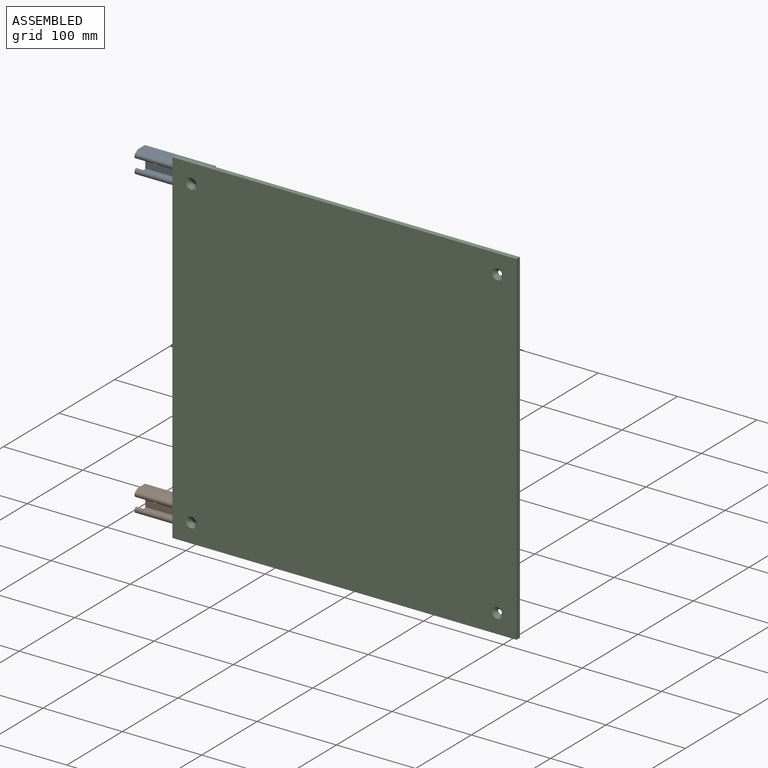
[diagram: assembled view]
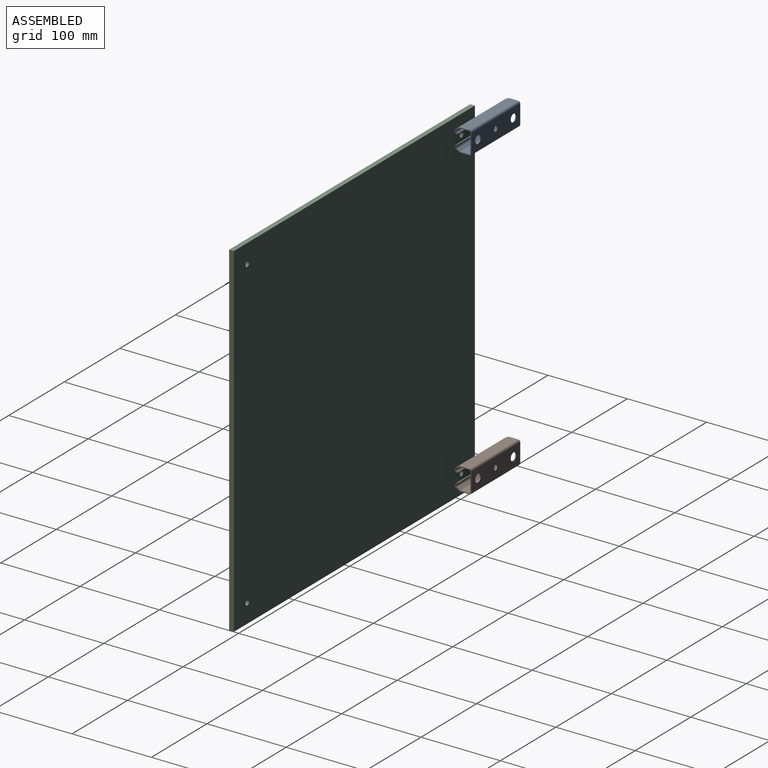
[diagram: assembled view, second angle]
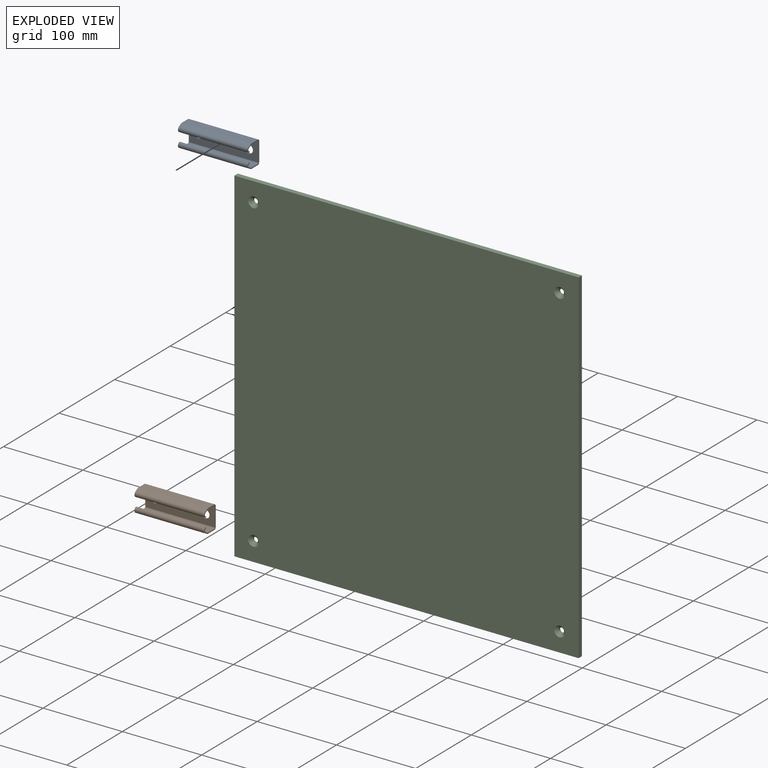
[diagram: exploded view]
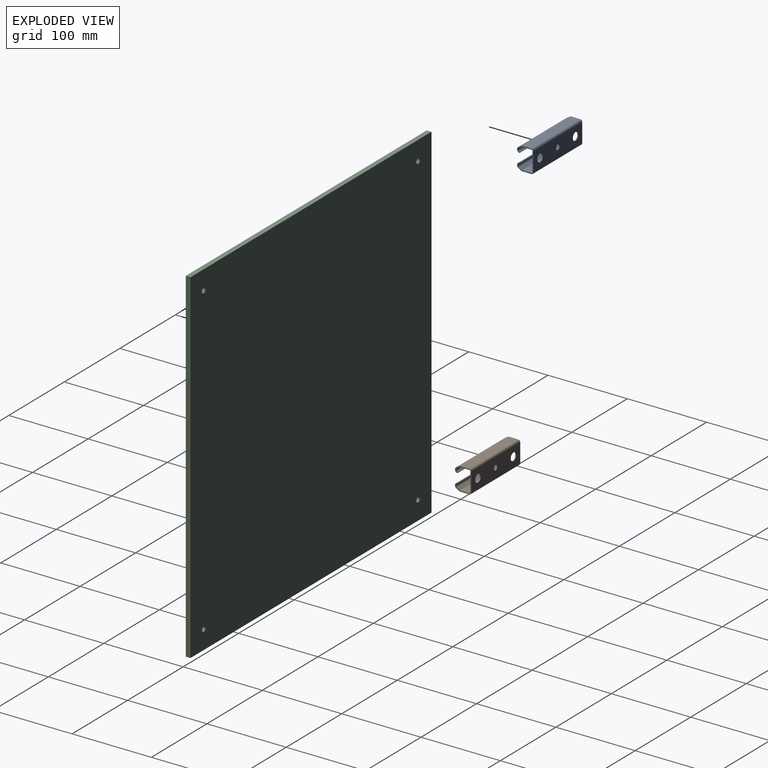
[diagram: exploded view, second angle]
ASSEMBLY  parts=3 mates=2
PART A: 29 faces, bbox 88x20.7x29 mm
  f0: cylinder r=2.5mm len=88mm, axis (1,0,0), area 115.1mm2, adj f1,f23,f24,f25
  f1: plane 88x11.5mm, normal (0,0,-1), area 1012mm2, adj f0,f2,f24,f25
  f2: cylinder r=2.5mm len=88mm, axis (1,0,0), area 345.6mm2, adj f1,f3,f24,f25
  f3: plane 88x24mm, normal (0,-1,0), area 1922.8mm2, adj f2,f4,f24,f25,f26,f27,f28
  f4: cylinder r=2.5mm len=88mm, axis (1,0,0), area 345.6mm2, adj f3,f5,f24,f25
  f5: plane 88x11.5mm, normal (0,0,1), area 1012mm2, adj f4,f6,f24,f25
  f6: cylinder r=2.5mm len=88mm, axis (1,0,0), area 115.1mm2, adj f5,f7,f24,f25
  f7: plane 88x3.7mm, normal (0,0.5,0.87), area 375.8mm2, adj f6,f8,f24,f25
  f8: cylinder r=3.5mm len=88mm, axis (1,0,0), area 739mm2, adj f7,f9,f24,f25
  f9: cylinder r=0.62mm len=88mm, axis (1,0,0), area 172.8mm2, adj f8,f10,f24,f25
  f10: cylinder r=2.25mm len=88mm, axis (1,0,0), area 475.1mm2, adj f9,f11,f24,f25
  f11: plane 88x3.7mm, normal (0,-0.5,-0.87), area 375.8mm2, adj f10,f12,f24,f25
  f12: cylinder r=1.25mm len=88mm, axis (1,0,0), area 57.5mm2, adj f11,f13,f24,f25
  f13: plane 88x11.5mm, normal (0,0,-1), area 1012mm2, adj f12,f14,f24,f25
  f14: cylinder r=1.25mm len=88mm, axis (1,0,0), area 172.8mm2, adj f13,f15,f24,f25
  f15: plane 88x24mm, normal (0,1,0), area 1922.8mm2, adj f14,f16,f24,f25,f26,f27,f28
  f16: cylinder r=1.25mm len=88mm, axis (1,0,0), area 172.8mm2, adj f15,f17,f24,f25
  f17: plane 88x11.5mm, normal (0,0,1), area 1012mm2, adj f16,f18,f24,f25
  f18: cylinder r=1.25mm len=88mm, axis (1,0,0), area 57.5mm2, adj f17,f19,f24,f25
  f19: plane 88x3.7mm, normal (0,-0.5,0.87), area 375.8mm2, adj f18,f20,f24,f25
  f20: cylinder r=2.25mm len=88mm, axis (1,0,0), area 475.1mm2, adj f19,f21,f24,f25
  f21: cylinder r=0.62mm len=88mm, axis (1,0,0), area 172.8mm2, adj f20,f22,f24,f25
  f22: cylinder r=3.5mm len=88mm, axis (1,0,0), area 739mm2, adj f21,f23,f24,f25
  f23: plane 88x3.7mm, normal (0,0.5,-0.87), area 375.8mm2, adj f0,f22,f24,f25
  f24: plane 29x20.7mm, normal (1,0,0), area 97.7mm2, adj f0,f1,f2,f3,f4,f5,f6,f7
  f25: plane 29x20.7mm, normal (-1,0,0), area 97.7mm2, adj f0,f1,f2,f3,f4,f5,f6,f7
  f26: cylinder r=3.2mm len=6.4mm, axis (0,1,0), area 25.1mm2, adj f3,f15
  f27: cylinder r=5mm len=10mm, axis (0,1,0), area 39.3mm2, adj f3,f15
  f28: cylinder r=5mm len=10mm, axis (0,1,0), area 39.3mm2, adj f3,f15
PART B: same geometry as A
PART C: 14 faces, bbox 434x6x434 mm
  f0: plane 434x434mm, normal (0,1,0), area 188219.2mm2, adj f1,f3,f4,f5,f6,f8,f10,f12
  f1: plane 434x6mm, normal (-1,0,0), area 2604mm2, adj f0,f2,f3,f4
  f2: plane 434x434mm, normal (0,-1,0), area 187788.5mm2, adj f1,f3,f4,f5,f7,f9,f11,f13
  f3: plane 434x6mm, normal (0,0,1), area 2604mm2, adj f0,f1,f2,f5
  f4: plane 434x6mm, normal (0,0,-1), area 2604mm2, adj f0,f1,f2,f5
  f5: plane 434x6mm, normal (1,0,0), area 2604mm2, adj f0,f2,f3,f4
  f6: cylinder r=3.3mm len=6.6mm, axis (0,-1,0), area 53.5mm2, adj f0,f7
  f7: cone r=3.3mm half-angle=45deg, axis (0,-1,0), area 152.3mm2, adj f2,f6
  f8: cylinder r=3.3mm len=6.6mm, axis (0,-1,0), area 53.5mm2, adj f0,f9
  f9: cone r=3.3mm half-angle=45deg, axis (0,-1,0), area 152.3mm2, adj f2,f8
  f10: cylinder r=3.3mm len=6.6mm, axis (0,-1,0), area 53.5mm2, adj f0,f11
  f11: cone r=3.3mm half-angle=45deg, axis (0,-1,0), area 152.3mm2, adj f2,f10
  f12: cylinder r=3.3mm len=6.6mm, axis (0,-1,0), area 53.5mm2, adj f0,f13
  f13: cone r=3.3mm half-angle=45deg, axis (0,-1,0), area 152.3mm2, adj f2,f12
PLACE A rot(axis=(0,0,1),180deg) t=(-225,25.45,193)mm
PLACE B rot(axis=(0,0,1),180deg) t=(-225,25.45,-193)mm
PLACE C at identity fixed
MATE fastened B.f28 <-> C.f12  axis (0,-1,0) through (-193,6,-193)mm
MATE fastened A.f28 <-> C.f6  axis (0,-1,0) through (-193,6,193)mm
